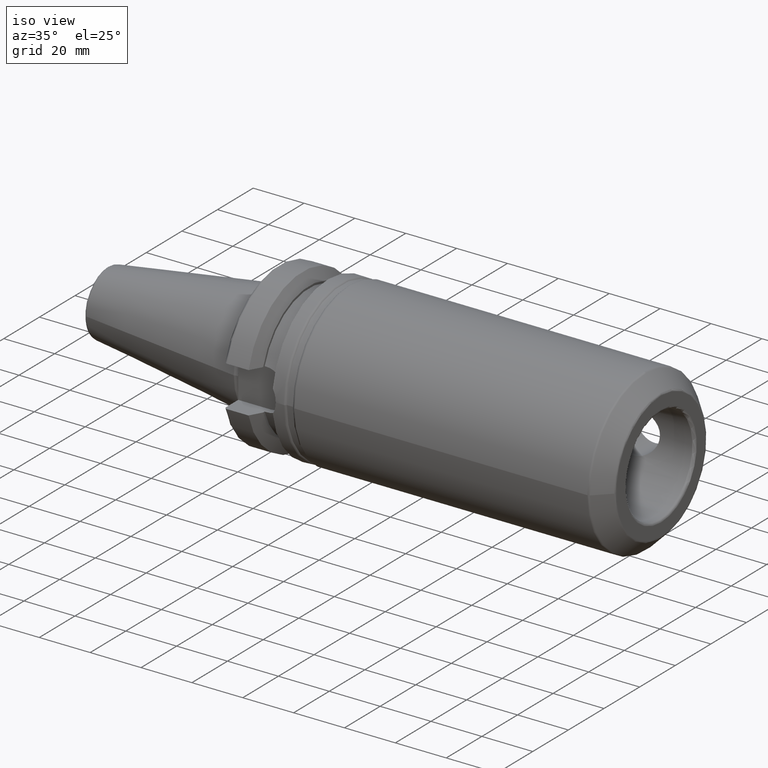
[diagram: clean part render]
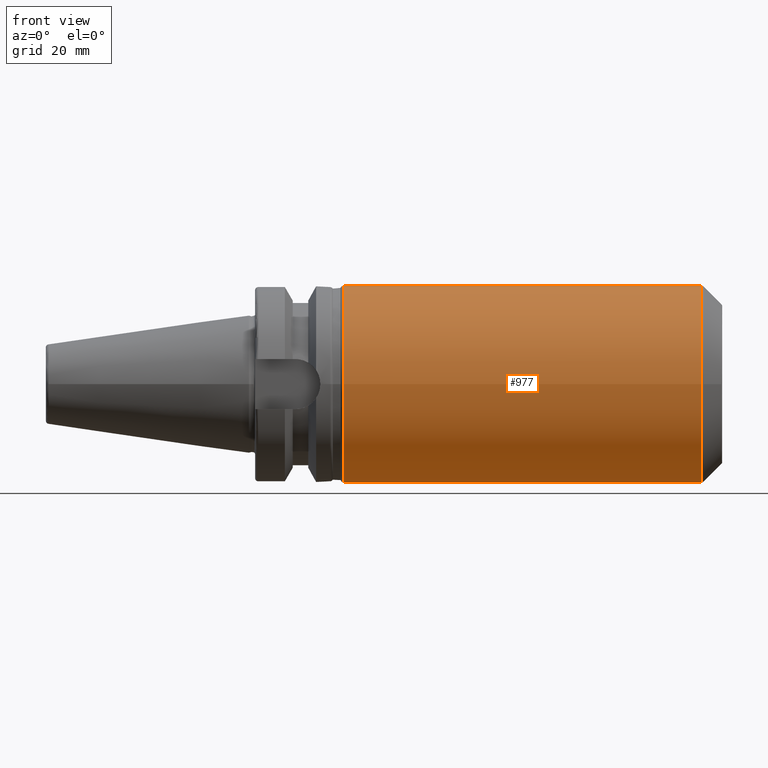
[diagram: tour spotlight — one face highlighted and labeled with its STEP entity id]
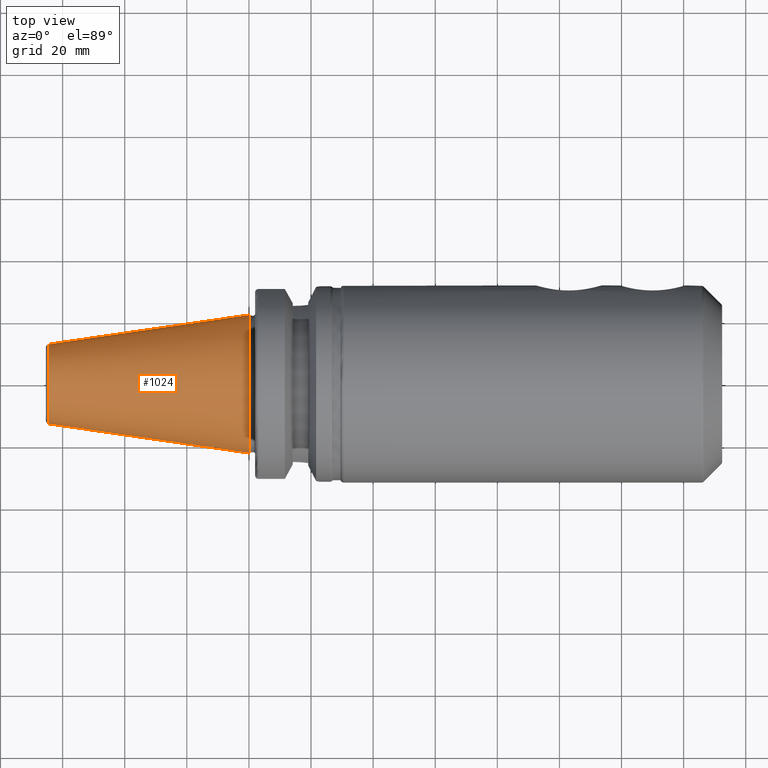
[diagram: tour spotlight — one face highlighted and labeled with its STEP entity id]
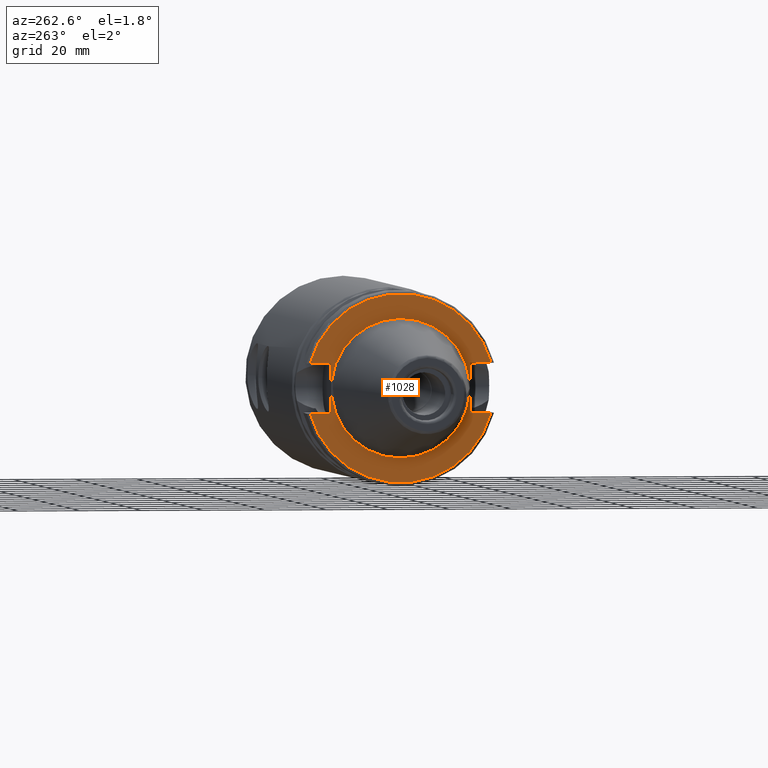
[diagram: tour spotlight — one face highlighted and labeled with its STEP entity id]
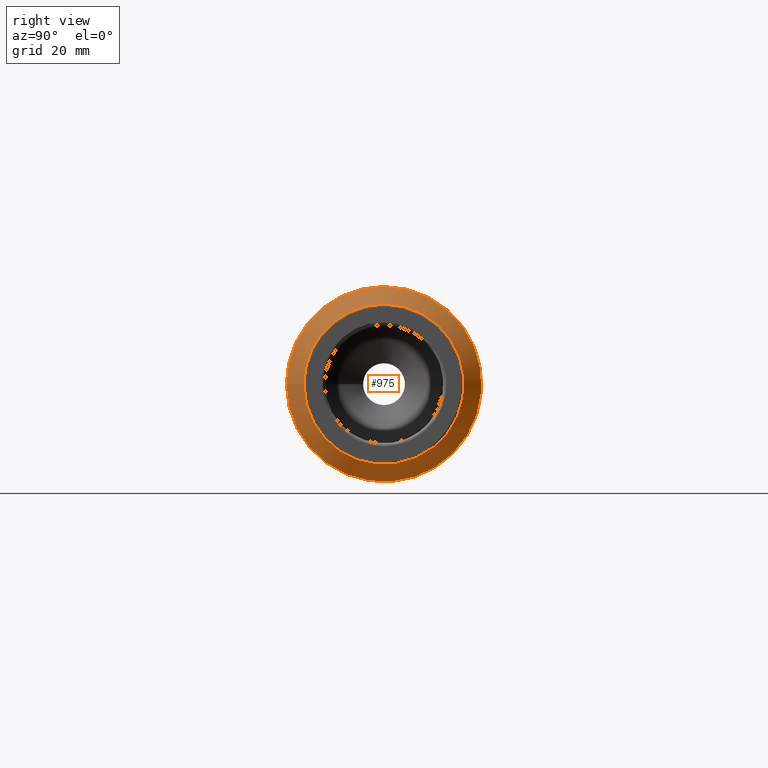
[diagram: tour spotlight — one face highlighted and labeled with its STEP entity id]
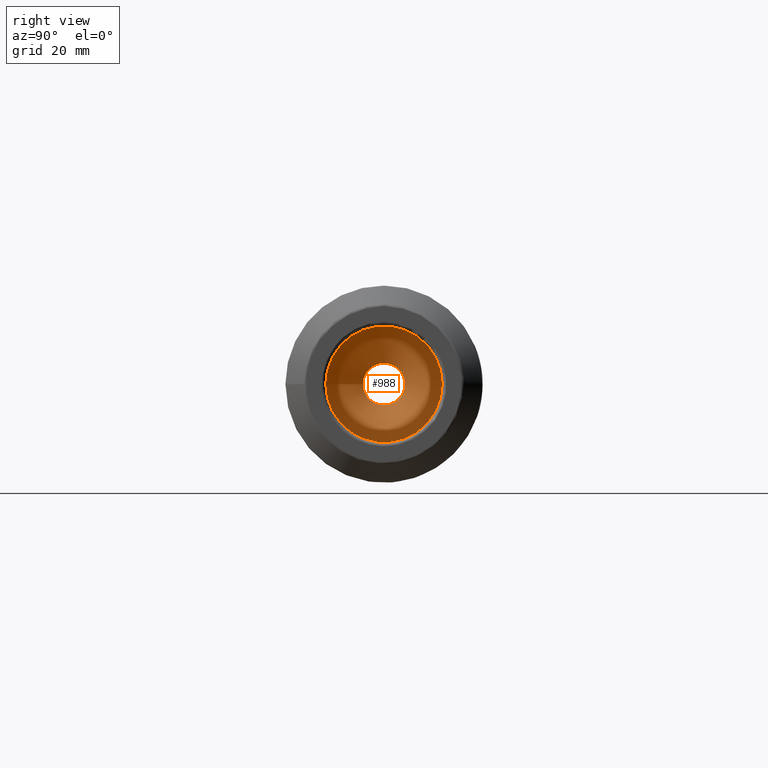
[diagram: tour spotlight — one face highlighted and labeled with its STEP entity id]
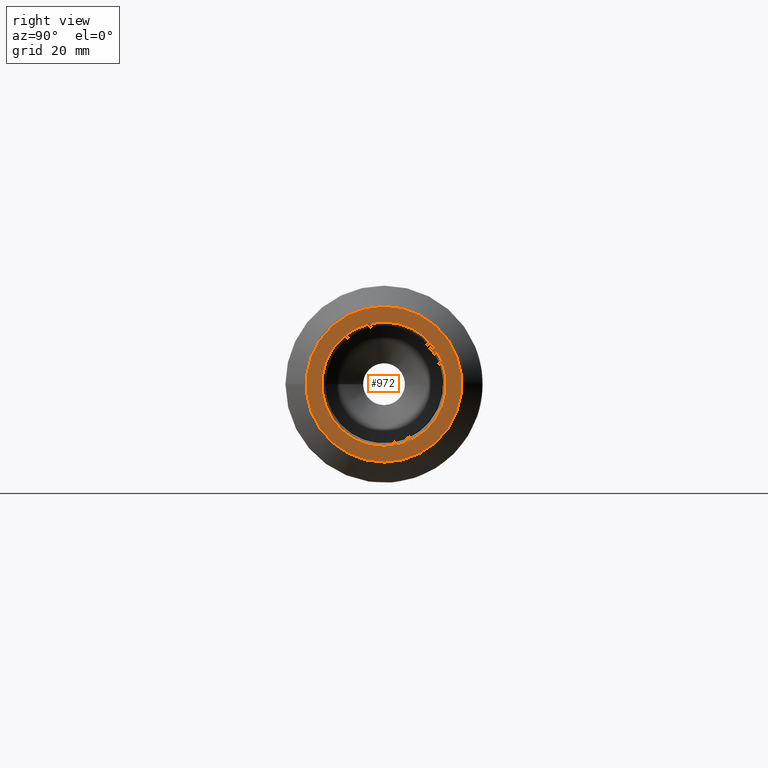
[diagram: tour spotlight — one face highlighted and labeled with its STEP entity id]
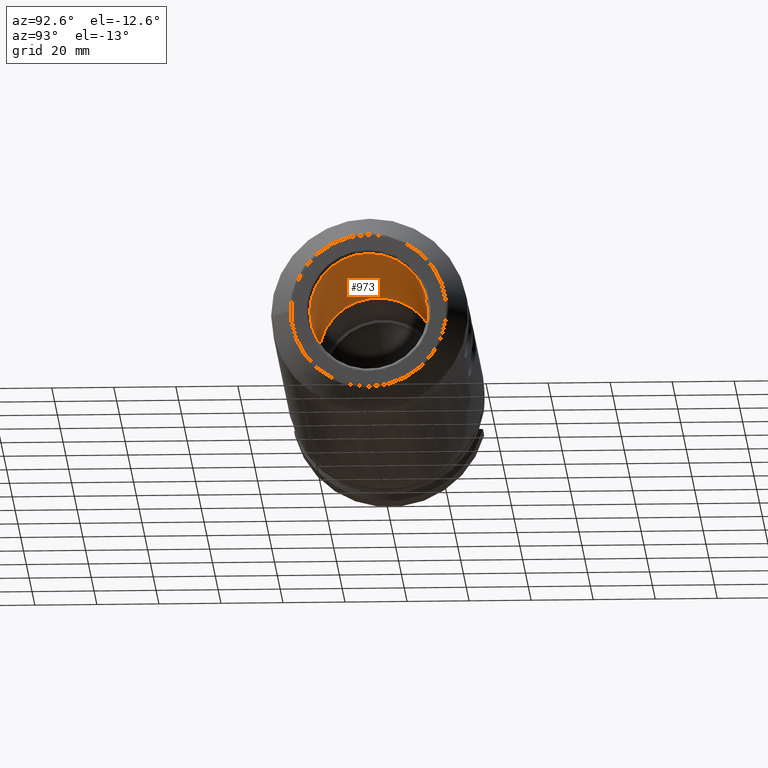
[diagram: tour spotlight — one face highlighted and labeled with its STEP entity id]
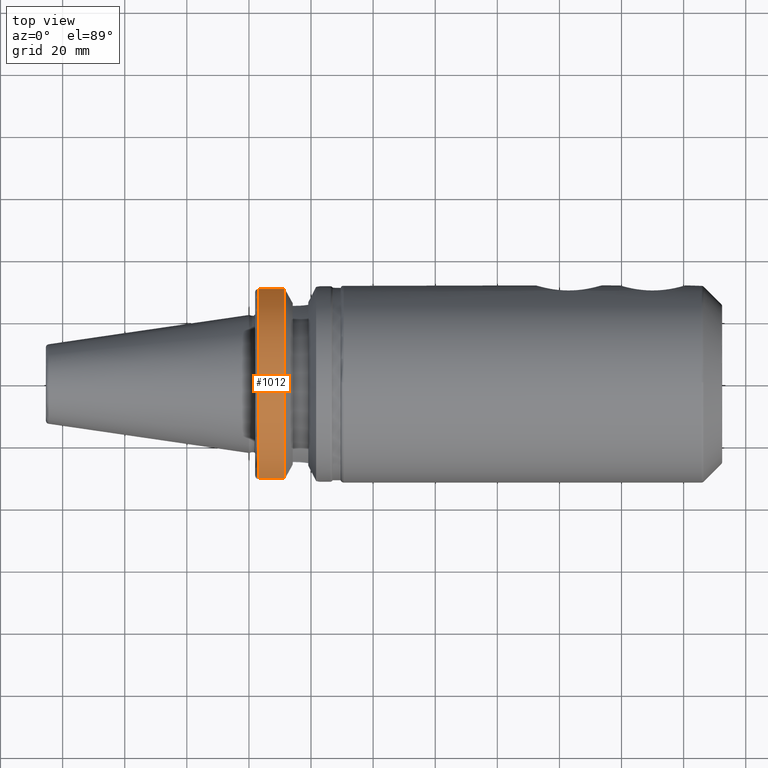
[diagram: tour spotlight — one face highlighted and labeled with its STEP entity id]
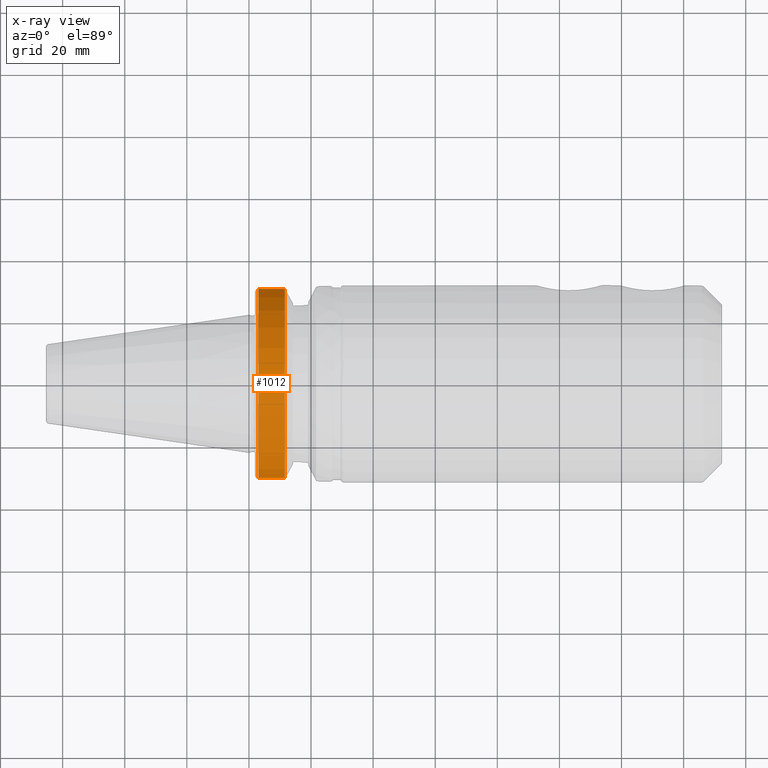
[diagram: x-ray of the same camera — body ghosted, this tour face saturated]
A machine part: a face-by-face anatomy tour. The part has 58 B-rep faces; the first image is the clean iso view, then the 8 largest visible faces are spotlighted one at a time (largest first), each with its STEP entity span.

Face 1 — front view, entity #977. In plain terms, the highlighted cylindrical surface (bore or boss wall) has radius 31.75 mm, axis along (1, 0, 0).
Definition (entity closure, byte-faithful):
#43=B_SPLINE_CURVE_WITH_KNOTS('',3,(#1672,#1673,#1674,#1675,#1676,#1677,
#1678,#1679,#1680,#1681,#1682,#1683,#1684,#1685,#1686,#1687,#1688,#1689,
#1690,#1691,#1692,#1693,#1694,#1695,#1696,#1697,#1698,#1699,#1700,#1701,
#1702,#1703,#1704,#1705,#1706,#1707,#1708),.UNSPECIFIED.,.T.,.F.,(4,1,1,
1,1,1,1,1,1,1,1,1,1,1,1,1,1,1,1,1,1,1,1,1,1,1,1,1,1,1,1,1,1,1,4),(-9.18578536524083,
-8.99832035778693,-8.81085535033304,-8.67025659474262,-8.62339034287914,
-8.43592533542525,-8.24846032797135,-8.10786157238093,-8.06099532051746,
-7.68606530560967,-7.56108863397374,-7.4673561302468,-7.43611196233781,
-7.31113529070188,-7.18615861906595,-6.99869361161206,-6.93620527579409,
-6.68625193252223,-6.43629858925038,-6.18634524597852,-6.0457464903881,
-5.99888023852462,-5.81141523107073,-5.62395022361683,-5.55365084582162,
-5.53021771988989,-5.43648521616294,-5.06155520125515,-5.01468894939168,
-4.87409019380125,-4.68662518634736,-4.49916017889347,-4.31169517143957,
-4.12423016398568,-3.93676515653178),.UNSPECIFIED.);
#44=B_SPLINE_CURVE_WITH_KNOTS('',3,(#1710,#1711,#1712,#1713,#1714,#1715,
#1716,#1717,#1718,#1719,#1720,#1721,#1722,#1723,#1724,#1725,#1726,#1727,
#1728,#1729,#1730,#1731,#1732,#1733,#1734,#1735,#1736,#1737,#1738,#1739,
#1740,#1741,#1742,#1743,#1744,#1745,#1746),.UNSPECIFIED.,.T.,.F.,(4,1,1,
1,1,1,1,1,1,1,1,1,1,1,1,1,1,1,1,1,1,1,1,1,1,1,1,1,1,1,1,1,1,1,4),(-9.18578536524083,
-8.99832035778693,-8.81085535033304,-8.67025659474262,-8.62339034287914,
-8.43592533542525,-8.24846032797135,-8.10786157238093,-8.06099532051746,
-7.68606530560967,-7.56108863397374,-7.4673561302468,-7.43611196233781,
-7.31113529070188,-7.18615861906595,-6.99869361161206,-6.93620527579409,
-6.68625193252223,-6.43629858925038,-6.18634524597852,-6.0457464903881,
-5.99888023852462,-5.81141523107073,-5.62395022361683,-5.55365084582162,
-5.53021771988989,-5.43648521616294,-5.06155520125515,-5.01468894939168,
-4.87409019380125,-4.68662518634736,-4.49916017889347,-4.31169517143957,
-4.12423016398568,-3.93676515653178),.UNSPECIFIED.);
#66=LINE('',#1667,#120);
#120=VECTOR('',#1221,31.75);
#171=CYLINDRICAL_SURFACE('',#1072,31.75);
#191=FACE_BOUND('',#282,.T.);
#192=FACE_BOUND('',#283,.T.);
#220=FACE_OUTER_BOUND('',#281,.T.);
#281=EDGE_LOOP('',(#700,#701,#702,#703,#704,#705));
#282=EDGE_LOOP('',(#706));
#283=EDGE_LOOP('',(#707));
#352=CIRCLE('',#1070,31.75);
#353=CIRCLE('',#1071,31.75);
#354=CIRCLE('',#1073,31.75);
#355=CIRCLE('',#1074,31.75);
#424=VERTEX_POINT('',#1660);
#425=VERTEX_POINT('',#1662);
#426=VERTEX_POINT('',#1666);
#427=VERTEX_POINT('',#1668);
#428=VERTEX_POINT('',#1671);
#429=VERTEX_POINT('',#1709);
#531=EDGE_CURVE('',#424,#425,#352,.T.);
#532=EDGE_CURVE('',#425,#424,#353,.T.);
#533=EDGE_CURVE('',#425,#426,#66,.T.);
#534=EDGE_CURVE('',#426,#427,#354,.T.);
#535=EDGE_CURVE('',#427,#426,#355,.T.);
#536=EDGE_CURVE('',#428,#428,#43,.T.);
#537=EDGE_CURVE('',#429,#429,#44,.T.);
#700=ORIENTED_EDGE('',*,*,#532,.F.);
#701=ORIENTED_EDGE('',*,*,#533,.T.);
#702=ORIENTED_EDGE('',*,*,#534,.T.);
#703=ORIENTED_EDGE('',*,*,#535,.T.);
#704=ORIENTED_EDGE('',*,*,#533,.F.);
#705=ORIENTED_EDGE('',*,*,#531,.F.);
#706=ORIENTED_EDGE('',*,*,#536,.F.);
#707=ORIENTED_EDGE('',*,*,#537,.F.);
#977=ADVANCED_FACE('',(#220,#191,#192),#171,.T.);
#1070=AXIS2_PLACEMENT_3D('',#1663,#1215,#1216);
#1071=AXIS2_PLACEMENT_3D('',#1664,#1217,#1218);
#1072=AXIS2_PLACEMENT_3D('',#1665,#1219,#1220);
#1073=AXIS2_PLACEMENT_3D('',#1669,#1222,#1223);
#1074=AXIS2_PLACEMENT_3D('',#1670,#1224,#1225);
#1215=DIRECTION('center_axis',(1.,0.,0.));
#1216=DIRECTION('ref_axis',(0.,-1.,1.83697019872103E-16));
#1217=DIRECTION('center_axis',(1.,0.,0.));
#1218=DIRECTION('ref_axis',(0.,-1.,1.83697019872103E-16));
#1219=DIRECTION('center_axis',(1.,0.,0.));
#1220=DIRECTION('ref_axis',(0.,1.,0.));
#1221=DIRECTION('',(-1.,0.,0.));
#1222=DIRECTION('center_axis',(1.,0.,0.));
#1223=DIRECTION('ref_axis',(0.,0.,-1.));
#1224=DIRECTION('center_axis',(1.,0.,0.));
#1225=DIRECTION('ref_axis',(0.,0.,-1.));
#1660=CARTESIAN_POINT('',(145.735786437627,-3.88825358729285E-15,31.75));
#1662=CARTESIAN_POINT('',(145.735786437627,-31.75,-3.88825358729285E-15));
#1663=CARTESIAN_POINT('Origin',(145.735786437627,0.,0.));
#1664=CARTESIAN_POINT('Origin',(145.735786437627,0.,0.));
#1665=CARTESIAN_POINT('Origin',(88.3251229182759,0.,0.));
#1666=CARTESIAN_POINT('',(30.5002458365519,-31.75,-3.88825358729285E-15));
#1667=CARTESIAN_POINT('',(88.3251229182759,-31.75,-3.88825358729285E-15));
#1668=CARTESIAN_POINT('',(30.5002458365519,-3.88825358729285E-15,31.75));
#1669=CARTESIAN_POINT('Origin',(30.5002458365519,0.,0.));
#1670=CARTESIAN_POINT('Origin',(30.5002458365519,0.,0.));
#1671=CARTESIAN_POINT('',(140.6614,31.75,-1.38777878078145E-15));
#1672=CARTESIAN_POINT('Ctrl Pts',(140.6614,31.75,-1.38777878078145E-15));
#1673=CARTESIAN_POINT('Ctrl Pts',(140.6614,31.75,-0.769174894924205));
#1674=CARTESIAN_POINT('Ctrl Pts',(140.491356010389,31.6921127395513,-2.36559429838009));
#1675=CARTESIAN_POINT('Ctrl Pts',(139.746184910162,31.4510532852662,-4.48750746064443));
#1676=CARTESIAN_POINT('Ctrl Pts',(138.921537421419,31.2088649133986,-5.86608778069849));
#1677=CARTESIAN_POINT('Ctrl Pts',(137.965358755017,30.9508768308121,-7.11424172821393));
#1678=CARTESIAN_POINT('Ctrl Pts',(136.767837592823,30.6569593685258,-8.30379267024276));
#1679=CARTESIAN_POINT('Ctrl Pts',(134.87960104052,30.3022455747316,-9.49436323433042));
#1680=CARTESIAN_POINT('Ctrl Pts',(133.354818508813,30.1130225104704,-10.0657507316721));
#1681=CARTESIAN_POINT('Ctrl Pts',(130.981166370635,29.909552660313,-10.6586351773608));
#1682=CARTESIAN_POINT('Ctrl Pts',(128.684957431957,29.9100421972096,-10.6574262551758));
#1683=CARTESIAN_POINT('Ctrl Pts',(126.190443303079,30.1636114894983,-9.91664526043093));
#1684=CARTESIAN_POINT('Ctrl Pts',(125.207942278336,30.3062427961878,-9.46799606248876));
#1685=CARTESIAN_POINT('Ctrl Pts',(124.267541439535,30.4628340074507,-8.95476334148104));
#1686=CARTESIAN_POINT('Ctrl Pts',(123.273075090035,30.6580111516531,-8.27429792382916));
#1687=CARTESIAN_POINT('Ctrl Pts',(121.976417682608,30.9611758290659,-7.08356591555251));
#1688=CARTESIAN_POINT('Ctrl Pts',(121.025650251439,31.223121454804,-5.82032802332885));
#1689=CARTESIAN_POINT('Ctrl Pts',(120.009964402872,31.5268634444042,-3.93129970098243));
#1690=CARTESIAN_POINT('Ctrl Pts',(119.296917140045,31.7637161189347,-1.55356781799805));
#1691=CARTESIAN_POINT('Ctrl Pts',(119.296286088456,31.7639583956281,1.55466449930466));
#1692=CARTESIAN_POINT('Ctrl Pts',(120.110844661535,31.4934884784565,4.26247835863216));
#1693=CARTESIAN_POINT('Ctrl Pts',(121.078022685288,31.208910404557,5.86472593901334));
#1694=CARTESIAN_POINT('Ctrl Pts',(122.033181122689,30.9514032617553,7.11374520003694));
#1695=CARTESIAN_POINT('Ctrl Pts',(123.234475601637,30.6564947425395,8.30422691115962));
#1696=CARTESIAN_POINT('Ctrl Pts',(124.861975404643,30.3505985478894,9.33365294412961));
#1697=CARTESIAN_POINT('Ctrl Pts',(125.982767742892,30.1976715284683,9.80696096249077));
#1698=CARTESIAN_POINT('Ctrl Pts',(126.746386485527,30.1071090638416,10.0826412860967));
#1699=CARTESIAN_POINT('Ctrl Pts',(128.819317780334,29.9098615294564,10.658374504793));
#1700=CARTESIAN_POINT('Ctrl Pts',(130.982510920182,29.9097052865847,10.6588510541332));
#1701=CARTESIAN_POINT('Ctrl Pts',(133.353674110932,30.1128573186918,10.0655773027828));
#1702=CARTESIAN_POINT('Ctrl Pts',(134.880698177704,30.3024429901464,9.49407055637104));
#1703=CARTESIAN_POINT('Ctrl Pts',(136.76436673445,30.6563113234884,8.30546947000284));
#1704=CARTESIAN_POINT('Ctrl Pts',(138.370908607756,31.0501124390865,6.7142350334798));
#1705=CARTESIAN_POINT('Ctrl Pts',(139.684067209108,31.4300347053663,4.67890405651803));
#1706=CARTESIAN_POINT('Ctrl Pts',(140.487933534083,31.6916284843512,2.36602209566385));
#1707=CARTESIAN_POINT('Ctrl Pts',(140.6614,31.75,0.769174894924175));
#1708=CARTESIAN_POINT('Ctrl Pts',(140.6614,31.75,-1.38777878078145E-15));
#1709=CARTESIAN_POINT('',(113.6614,31.75,-2.77555756156289E-16));
#1710=CARTESIAN_POINT('Ctrl Pts',(113.6614,31.75,-2.77555756156289E-16));
#1711=CARTESIAN_POINT('Ctrl Pts',(113.6614,31.75,-0.769174894924178));
#1712=CARTESIAN_POINT('Ctrl Pts',(113.491410642947,31.6921247820804,-2.36555154979832));
#1713=CARTESIAN_POINT('Ctrl Pts',(112.746286765812,31.451071764053,-4.48742330225482));
#1714=CARTESIAN_POINT('Ctrl Pts',(111.921644434353,31.2088817456167,-5.86600880506709));
#1715=CARTESIAN_POINT('Ctrl Pts',(110.965461516255,30.9508931481206,-7.11415728910441));
#1716=CARTESIAN_POINT('Ctrl Pts',(109.767878211516,30.6569429103293,-8.30385854145552));
#1717=CARTESIAN_POINT('Ctrl Pts',(107.879679071218,30.302233133255,-9.49438864352834));
#1718=CARTESIAN_POINT('Ctrl Pts',(106.354905973401,30.1130110329532,-10.0657620518526));
#1719=CARTESIAN_POINT('Ctrl Pts',(103.981225992303,29.9095390727825,-10.6585947307474));
#1720=CARTESIAN_POINT('Ctrl Pts',(101.684899342794,29.9100317436773,-10.6574185633039));
#1721=CARTESIAN_POINT('Ctrl Pts',(99.1903338395166,30.163603319482,-9.91667228361118));
#1722=CARTESIAN_POINT('Ctrl Pts',(98.2078622168015,30.3062333305924,-9.46801040836542));
#1723=CARTESIAN_POINT('Ctrl Pts',(97.2674617298206,30.4628239726311,-8.95478417141456));
#1724=CARTESIAN_POINT('Ctrl Pts',(96.2730319706834,30.6579995119318,-8.27429067922508));
#1725=CARTESIAN_POINT('Ctrl Pts',(94.976373047944,30.9611677678746,-7.08355918579648));
#1726=CARTESIAN_POINT('Ctrl Pts',(94.0256285488738,31.2231131988787,-5.82027881889471));
#1727=CARTESIAN_POINT('Ctrl Pts',(93.009907057682,31.5268707701487,-3.93128616280668));
#1728=CARTESIAN_POINT('Ctrl Pts',(92.296914824399,31.7637080858201,-1.55345707051174));
#1729=CARTESIAN_POINT('Ctrl Pts',(92.2961858436486,31.7639817116526,1.55470604688979));
#1730=CARTESIAN_POINT('Ctrl Pts',(93.1109186160933,31.4934328075963,4.26297810418839));
#1731=CARTESIAN_POINT('Ctrl Pts',(94.0781071134452,31.2088560395292,5.86502833093494));
#1732=CARTESIAN_POINT('Ctrl Pts',(95.033570373085,30.9512051128295,7.11516966706842));
#1733=CARTESIAN_POINT('Ctrl Pts',(96.2340631756905,30.6566831283452,8.30265566591655));
#1734=CARTESIAN_POINT('Ctrl Pts',(97.8617774975658,30.3506359455646,9.33332136479747));
#1735=CARTESIAN_POINT('Ctrl Pts',(98.9825656553281,30.1977085905338,9.80662951942808));
#1736=CARTESIAN_POINT('Ctrl Pts',(99.7461871664349,30.1071419055258,10.0823488301348));
#1737=CARTESIAN_POINT('Ctrl Pts',(101.819167986091,29.9098833478036,10.6581102790336));
#1738=CARTESIAN_POINT('Ctrl Pts',(103.982605505416,29.9097035585288,10.6587837276352));
#1739=CARTESIAN_POINT('Ctrl Pts',(106.353812198437,30.1128577006346,10.0655647938164));
#1740=CARTESIAN_POINT('Ctrl Pts',(107.880830970826,30.3024411344006,9.4940701038552));
#1741=CARTESIAN_POINT('Ctrl Pts',(109.764449892696,30.6563069088101,8.30549105591682));
#1742=CARTESIAN_POINT('Ctrl Pts',(111.37100018554,31.0501191219303,6.71420738063719));
#1743=CARTESIAN_POINT('Ctrl Pts',(112.68415058054,31.4300419307499,4.67888624125295));
#1744=CARTESIAN_POINT('Ctrl Pts',(113.487995413421,31.6916386265662,2.36599965973631));
#1745=CARTESIAN_POINT('Ctrl Pts',(113.6614,31.75,0.769174894924127));
#1746=CARTESIAN_POINT('Ctrl Pts',(113.6614,31.75,-2.77555756156289E-15));

Face 2 — top view, entity #1024. In plain terms, the highlighted conical surface has half-angle 8.297 deg.
Definition (entity closure, byte-faithful):
#31=CONICAL_SURFACE('',#1162,17.5186442890469,0.144812498238939);
#113=LINE('',#2445,#167);
#167=VECTOR('',#1450,17.5186442890469);
#267=FACE_OUTER_BOUND('',#334,.T.);
#334=EDGE_LOOP('',(#933,#934,#935,#936,#937));
#396=CIRCLE('',#1159,12.8122885780937);
#397=CIRCLE('',#1160,12.8122885780937);
#399=CIRCLE('',#1163,22.225);
#498=VERTEX_POINT('',#2437);
#499=VERTEX_POINT('',#2438);
#500=VERTEX_POINT('',#2443);
#645=EDGE_CURVE('',#498,#499,#396,.T.);
#646=EDGE_CURVE('',#499,#498,#397,.T.);
#648=EDGE_CURVE('',#500,#500,#399,.T.);
#649=EDGE_CURVE('',#500,#498,#113,.T.);
#933=ORIENTED_EDGE('',*,*,#648,.F.);
#934=ORIENTED_EDGE('',*,*,#649,.T.);
#935=ORIENTED_EDGE('',*,*,#645,.T.);
#936=ORIENTED_EDGE('',*,*,#646,.T.);
#937=ORIENTED_EDGE('',*,*,#649,.F.);
#1024=ADVANCED_FACE('',(#267),#31,.T.);
#1159=AXIS2_PLACEMENT_3D('',#2439,#1440,#1441);
#1160=AXIS2_PLACEMENT_3D('',#2440,#1442,#1443);
#1162=AXIS2_PLACEMENT_3D('',#2442,#1446,#1447);
#1163=AXIS2_PLACEMENT_3D('',#2444,#1448,#1449);
#1440=DIRECTION('center_axis',(1.,0.,0.));
#1441=DIRECTION('ref_axis',(0.,0.,-1.));
#1442=DIRECTION('center_axis',(1.,0.,0.));
#1443=DIRECTION('ref_axis',(0.,0.,-1.));
#1446=DIRECTION('center_axis',(1.,0.,0.));
#1447=DIRECTION('ref_axis',(0.,1.,0.));
#1448=DIRECTION('center_axis',(1.,0.,0.));
#1449=DIRECTION('ref_axis',(0.,0.,-1.));
#1450=DIRECTION('',(-0.989532981063282,0.144306893071729,1.76724974695192E-17));
#2437=CARTESIAN_POINT('',(-64.5443068930717,-12.8122885780937,-1.56905281969147E-15));
#2438=CARTESIAN_POINT('',(-64.5443068930717,-1.56905281969147E-15,12.8122885780937));
#2439=CARTESIAN_POINT('Origin',(-64.5443068930717,0.,0.));
#2440=CARTESIAN_POINT('Origin',(-64.5443068930717,0.,0.));
#2442=CARTESIAN_POINT('Origin',(-32.2721534465359,0.,0.));
#2443=CARTESIAN_POINT('',(4.44089209850063E-15,-22.225,-2.72177751110499E-15));
#2444=CARTESIAN_POINT('Origin',(1.11022302462516E-15,0.,0.));
#2445=CARTESIAN_POINT('',(-32.2721534465359,-17.5186442890469,-2.14541516539823E-15));

Face 3 — auxiliary view, entity #1028. In plain terms, the highlighted planar face has unit normal (-1, 0, 0).
Definition (entity closure, byte-faithful):
#87=LINE('',#2265,#141);
#91=LINE('',#2273,#145);
#94=LINE('',#2293,#148);
#104=LINE('',#2373,#158);
#107=LINE('',#2394,#161);
#109=LINE('',#2397,#163);
#141=VECTOR('',#1314,10.);
#145=VECTOR('',#1320,10.);
#148=VECTOR('',#1325,10.);
#158=VECTOR('',#1369,10.);
#161=VECTOR('',#1374,10.);
#163=VECTOR('',#1378,10.);
#197=FACE_BOUND('',#339,.T.);
#213=PLANE('',#1172);
#271=FACE_OUTER_BOUND('',#338,.T.);
#338=EDGE_LOOP('',(#952,#953,#954,#955,#956,#957,#958,#959));
#339=EDGE_LOOP('',(#960));
#379=CIRCLE('',#1124,30.5);
#383=CIRCLE('',#1134,30.5);
#404=CIRCLE('',#1171,22.5);
#463=VERTEX_POINT('',#2253);
#464=VERTEX_POINT('',#2264);
#466=VERTEX_POINT('',#2270);
#467=VERTEX_POINT('',#2272);
#478=VERTEX_POINT('',#2333);
#485=VERTEX_POINT('',#2370);
#486=VERTEX_POINT('',#2372);
#490=VERTEX_POINT('',#2393);
#504=VERTEX_POINT('',#2457);
#586=EDGE_CURVE('',#464,#463,#87,.T.);
#590=EDGE_CURVE('',#467,#466,#91,.T.);
#595=EDGE_CURVE('',#466,#464,#94,.T.);
#609=EDGE_CURVE('',#467,#478,#379,.T.);
#619=EDGE_CURVE('',#486,#485,#104,.T.);
#624=EDGE_CURVE('',#490,#478,#107,.T.);
#626=EDGE_CURVE('',#485,#490,#109,.T.);
#629=EDGE_CURVE('',#486,#463,#383,.T.);
#656=EDGE_CURVE('',#504,#504,#404,.T.);
#952=ORIENTED_EDGE('',*,*,#586,.T.);
#953=ORIENTED_EDGE('',*,*,#629,.F.);
#954=ORIENTED_EDGE('',*,*,#619,.T.);
#955=ORIENTED_EDGE('',*,*,#626,.T.);
#956=ORIENTED_EDGE('',*,*,#624,.T.);
#957=ORIENTED_EDGE('',*,*,#609,.F.);
#958=ORIENTED_EDGE('',*,*,#590,.T.);
#959=ORIENTED_EDGE('',*,*,#595,.T.);
#960=ORIENTED_EDGE('',*,*,#656,.T.);
#1028=ADVANCED_FACE('',(#271,#197),#213,.T.);
#1124=AXIS2_PLACEMENT_3D('',#2334,#1356,#1357);
#1134=AXIS2_PLACEMENT_3D('',#2402,#1387,#1388);
#1171=AXIS2_PLACEMENT_3D('',#2459,#1467,#1468);
#1172=AXIS2_PLACEMENT_3D('',#2460,#1469,#1470);
#1314=DIRECTION('',(0.,-1.,0.));
#1320=DIRECTION('',(0.,1.,0.));
#1325=DIRECTION('',(0.,0.,1.));
#1356=DIRECTION('center_axis',(1.,0.,0.));
#1357=DIRECTION('ref_axis',(0.,0.,-1.));
#1369=DIRECTION('',(0.,-1.,0.));
#1374=DIRECTION('',(0.,1.,0.));
#1378=DIRECTION('',(0.,0.,-1.));
#1387=DIRECTION('center_axis',(1.,0.,0.));
#1388=DIRECTION('ref_axis',(0.,0.,-1.));
#1467=DIRECTION('center_axis',(1.,0.,0.));
#1468=DIRECTION('ref_axis',(0.,0.,-1.));
#1469=DIRECTION('center_axis',(-1.,0.,0.));
#1470=DIRECTION('ref_axis',(0.,0.,1.));
#2253=CARTESIAN_POINT('',(1.99999999999999,-29.4184890842477,8.05));
#2264=CARTESIAN_POINT('',(1.99999999999999,-22.6,8.05));
#2265=CARTESIAN_POINT('',(1.99999999999999,3.95,8.05));
#2270=CARTESIAN_POINT('',(1.99999999999999,-22.6,-8.05));
#2272=CARTESIAN_POINT('',(1.99999999999999,-29.4184890842477,-8.05));
#2273=CARTESIAN_POINT('',(1.99999999999999,3.95,-8.05));
#2293=CARTESIAN_POINT('',(1.99999999999999,-22.6,0.));
#2333=CARTESIAN_POINT('',(1.99999999999999,29.4184890842477,-8.05));
#2334=CARTESIAN_POINT('Origin',(1.99999999999999,0.,0.));
#2370=CARTESIAN_POINT('',(1.99999999999999,22.6,8.05));
#2372=CARTESIAN_POINT('',(1.99999999999999,29.4184890842477,8.05));
#2373=CARTESIAN_POINT('',(1.99999999999999,26.55,8.05));
#2393=CARTESIAN_POINT('',(1.99999999999999,22.6,-8.05));
#2394=CARTESIAN_POINT('',(1.99999999999999,26.55,-8.05));
#2397=CARTESIAN_POINT('',(1.99999999999999,22.6,0.));
#2402=CARTESIAN_POINT('Origin',(1.99999999999999,0.,0.));
#2457=CARTESIAN_POINT('',(2.,-2.75545529808154E-15,22.5));
#2459=CARTESIAN_POINT('Origin',(2.,0.,0.));
#2460=CARTESIAN_POINT('Origin',(1.99999999999999,30.5,0.));

Face 4 — right view, entity #975. In plain terms, the highlighted conical surface has half-angle 45 deg.
Definition (entity closure, byte-faithful):
#21=CONICAL_SURFACE('',#1065,28.625,0.78539816339745);
#65=LINE('',#1655,#119);
#119=VECTOR('',#1206,28.625);
#218=FACE_OUTER_BOUND('',#279,.T.);
#279=EDGE_LOOP('',(#688,#689,#690,#691,#692,#693));
#347=CIRCLE('',#1063,25.7928932188135);
#348=CIRCLE('',#1064,25.7928932188135);
#349=CIRCLE('',#1066,31.4571067811866);
#350=CIRCLE('',#1067,31.4571067811866);
#420=VERTEX_POINT('',#1648);
#421=VERTEX_POINT('',#1650);
#422=VERTEX_POINT('',#1654);
#423=VERTEX_POINT('',#1656);
#525=EDGE_CURVE('',#420,#421,#347,.T.);
#526=EDGE_CURVE('',#421,#420,#348,.T.);
#527=EDGE_CURVE('',#421,#422,#65,.T.);
#528=EDGE_CURVE('',#423,#422,#349,.T.);
#529=EDGE_CURVE('',#422,#423,#350,.T.);
#688=ORIENTED_EDGE('',*,*,#526,.F.);
#689=ORIENTED_EDGE('',*,*,#527,.T.);
#690=ORIENTED_EDGE('',*,*,#528,.F.);
#691=ORIENTED_EDGE('',*,*,#529,.F.);
#692=ORIENTED_EDGE('',*,*,#527,.F.);
#693=ORIENTED_EDGE('',*,*,#525,.F.);
#975=ADVANCED_FACE('',(#218),#21,.T.);
#1063=AXIS2_PLACEMENT_3D('',#1651,#1200,#1201);
#1064=AXIS2_PLACEMENT_3D('',#1652,#1202,#1203);
#1065=AXIS2_PLACEMENT_3D('',#1653,#1204,#1205);
#1066=AXIS2_PLACEMENT_3D('',#1657,#1207,#1208);
#1067=AXIS2_PLACEMENT_3D('',#1658,#1209,#1210);
#1200=DIRECTION('center_axis',(1.,0.,0.));
#1201=DIRECTION('ref_axis',(0.,-1.,3.06161699786838E-17));
#1202=DIRECTION('center_axis',(1.,0.,0.));
#1203=DIRECTION('ref_axis',(0.,-1.,3.06161699786838E-17));
#1204=DIRECTION('center_axis',(-1.,0.,0.));
#1205=DIRECTION('ref_axis',(0.,1.,0.));
#1206=DIRECTION('',(-0.707106781186546,-0.707106781186549,-8.65956056235494E-17));
#1207=DIRECTION('center_axis',(-1.,0.,0.));
#1208=DIRECTION('ref_axis',(0.,-1.,3.06161699786838E-17));
#1209=DIRECTION('center_axis',(-1.,0.,0.));
#1210=DIRECTION('ref_axis',(0.,-1.,3.06161699786838E-17));
#1648=CARTESIAN_POINT('',(152.107106781187,-3.15871841211694E-15,25.7928932188135));
#1650=CARTESIAN_POINT('',(152.107106781187,-25.7928932188135,-3.15871841211694E-15));
#1651=CARTESIAN_POINT('Origin',(152.107106781187,0.,-3.94839801514618E-15));
#1652=CARTESIAN_POINT('Origin',(152.107106781187,0.,-3.94839801514618E-15));
#1653=CARTESIAN_POINT('Origin',(149.275,0.,0.));
#1654=CARTESIAN_POINT('',(146.442893218813,-31.4571067811866,-3.85238451300166E-15));
#1655=CARTESIAN_POINT('',(149.275,-28.625,-3.5055514625593E-15));
#1656=CARTESIAN_POINT('',(146.442893218813,-3.85238451300166E-15,31.4571067811866));
#1657=CARTESIAN_POINT('Origin',(146.442893218813,0.,-4.81548064125208E-15));
#1658=CARTESIAN_POINT('Origin',(146.442893218813,0.,-4.81548064125208E-15));

Face 5 — right view, entity #988. In plain terms, the highlighted conical surface has half-angle 60 deg.
Definition (entity closure, byte-faithful):
#24=CONICAL_SURFACE('',#1091,12.7515560482262,1.0471975511966);
#75=LINE('',#2179,#129);
#129=VECTOR('',#1268,12.7515560482262);
#231=FACE_OUTER_BOUND('',#295,.T.);
#295=EDGE_LOOP('',(#754,#755,#756,#757,#758));
#363=CIRCLE('',#1090,18.7531120964523);
#364=CIRCLE('',#1092,6.75000000000002);
#365=CIRCLE('',#1093,6.75000000000002);
#443=VERTEX_POINT('',#2175);
#444=VERTEX_POINT('',#2178);
#445=VERTEX_POINT('',#2180);
#558=EDGE_CURVE('',#443,#443,#363,.T.);
#559=EDGE_CURVE('',#443,#444,#75,.T.);
#560=EDGE_CURVE('',#445,#444,#364,.T.);
#561=EDGE_CURVE('',#444,#445,#365,.T.);
#754=ORIENTED_EDGE('',*,*,#558,.T.);
#755=ORIENTED_EDGE('',*,*,#559,.T.);
#756=ORIENTED_EDGE('',*,*,#560,.F.);
#757=ORIENTED_EDGE('',*,*,#561,.F.);
#758=ORIENTED_EDGE('',*,*,#559,.F.);
#988=ADVANCED_FACE('',(#231),#24,.F.);
#1090=AXIS2_PLACEMENT_3D('',#2176,#1264,#1265);
#1091=AXIS2_PLACEMENT_3D('',#2177,#1266,#1267);
#1092=AXIS2_PLACEMENT_3D('',#2181,#1269,#1270);
#1093=AXIS2_PLACEMENT_3D('',#2182,#1271,#1272);
#1264=DIRECTION('center_axis',(1.,0.,0.));
#1265=DIRECTION('ref_axis',(0.,0.,-1.));
#1266=DIRECTION('center_axis',(1.,0.,0.));
#1267=DIRECTION('ref_axis',(0.,1.,0.));
#1268=DIRECTION('',(-0.5,0.866025403784439,1.06057523872491E-16));
#1269=DIRECTION('center_axis',(1.,0.,0.));
#1270=DIRECTION('ref_axis',(0.,0.,-1.));
#1271=DIRECTION('center_axis',(1.,0.,0.));
#1272=DIRECTION('ref_axis',(0.,0.,-1.));
#2175=CARTESIAN_POINT('',(50.8,-18.7531120964523,-2.29659387029719E-15));
#2176=CARTESIAN_POINT('Origin',(50.8,0.,0.));
#2177=CARTESIAN_POINT('Origin',(47.335,0.,0.));
#2178=CARTESIAN_POINT('',(43.87,-6.75000000000003,-8.26636589424466E-16));
#2179=CARTESIAN_POINT('',(47.335,-12.7515560482262,-1.56161522986083E-15));
#2180=CARTESIAN_POINT('',(43.87,-8.26636589424463E-16,-6.75));
#2181=CARTESIAN_POINT('Origin',(43.87,0.,0.));
#2182=CARTESIAN_POINT('Origin',(43.87,0.,0.));

Face 6 — right view, entity #972. In plain terms, the highlighted planar face has unit normal (1, 0, 0).
Definition (entity closure, byte-faithful):
#188=FACE_BOUND('',#274,.T.);
#198=PLANE('',#1057);
#215=FACE_OUTER_BOUND('',#273,.T.);
#273=EDGE_LOOP('',(#662));
#274=EDGE_LOOP('',(#663));
#343=CIRCLE('',#1056,20.05);
#344=CIRCLE('',#1058,25.0857864376269);
#407=VERTEX_POINT('',#1477);
#408=VERTEX_POINT('',#1481);
#508=EDGE_CURVE('',#407,#407,#343,.T.);
#509=EDGE_CURVE('',#408,#408,#344,.T.);
#662=ORIENTED_EDGE('',*,*,#509,.F.);
#663=ORIENTED_EDGE('',*,*,#508,.F.);
#972=ADVANCED_FACE('',(#215,#188),#198,.T.);
#1056=AXIS2_PLACEMENT_3D('',#1479,#1183,#1184);
#1057=AXIS2_PLACEMENT_3D('',#1480,#1185,#1186);
#1058=AXIS2_PLACEMENT_3D('',#1482,#1187,#1188);
#1183=DIRECTION('center_axis',(1.,0.,0.));
#1184=DIRECTION('ref_axis',(0.,-1.,1.83697019872103E-16));
#1185=DIRECTION('center_axis',(1.,0.,0.));
#1186=DIRECTION('ref_axis',(0.,0.,-1.));
#1187=DIRECTION('center_axis',(-1.,0.,0.));
#1188=DIRECTION('ref_axis',(0.,-1.,1.83697019872103E-16));
#1477=CARTESIAN_POINT('',(152.4,-2.45541683229045E-15,20.05));
#1479=CARTESIAN_POINT('Origin',(152.4,0.,0.));
#1480=CARTESIAN_POINT('Origin',(152.4,19.05,0.));
#1481=CARTESIAN_POINT('',(152.4,-3.07212280649339E-15,25.0857864376269));
#1482=CARTESIAN_POINT('Origin',(152.4,0.,0.));

Face 7 — auxiliary view, entity #973. In plain terms, the highlighted cylindrical surface (bore or boss wall) has radius 19.05 mm, axis along (1, 0, 0).
Definition (entity closure, byte-faithful):
#33=B_SPLINE_CURVE_WITH_KNOTS('',3,(#1487,#1488,#1489,#1490,#1491,#1492,
#1493,#1494,#1495,#1496),.UNSPECIFIED.,.F.,.F.,(4,2,2,2,4),(0.338513943379082,
0.36661429326242,0.394714643145758,0.4230332838256,0.451351924505442),
 .UNSPECIFIED.);
#34=B_SPLINE_CURVE_WITH_KNOTS('',3,(#1498,#1499,#1500,#1501,#1502,#1503,
#1504,#1505,#1506,#1507),.UNSPECIFIED.,.F.,.F.,(4,2,2,2,4),(0.,0.0283186406798422,
0.0566372813596845,0.0847376312430225,0.112837981126361),.UNSPECIFIED.);
#35=B_SPLINE_CURVE_WITH_KNOTS('',3,(#1511,#1512,#1513,#1514,#1515,#1516,
#1517,#1518,#1519,#1520),.UNSPECIFIED.,.F.,.F.,(4,2,2,2,4),(0.338513943379082,
0.36661429326242,0.394714643145758,0.4230332838256,0.451351924505442),
 .UNSPECIFIED.);
#36=B_SPLINE_CURVE_WITH_KNOTS('',3,(#1522,#1523,#1524,#1525,#1526,#1527,
#1528,#1529,#1530,#1531),.UNSPECIFIED.,.F.,.F.,(4,2,2,2,4),(0.,0.0283186406798422,
0.0566372813596845,0.0847376312430225,0.112837981126361),.UNSPECIFIED.);
#37=B_SPLINE_CURVE_WITH_KNOTS('',3,(#1535,#1536,#1537,#1538,#1539,#1540,
#1541,#1542,#1543,#1544,#1545,#1546,#1547,#1548,#1549,#1550,#1551,#1552),
 .UNSPECIFIED.,.F.,.F.,(4,2,2,2,2,2,2,2,4),(0.112837981126361,0.140938331009699,
0.169038680893037,0.197357321572879,0.225675962252721,0.253994602932563,
0.282313243612406,0.310413593495744,0.338513943379082),.UNSPECIFIED.);
#38=B_SPLINE_CURVE_WITH_KNOTS('',3,(#1553,#1554,#1555,#1556,#1557,#1558,
#1559,#1560,#1561,#1562,#1563,#1564,#1565,#1566,#1567,#1568,#1569,#1570),
 .UNSPECIFIED.,.F.,.F.,(4,2,2,2,2,2,2,2,4),(0.112837981126361,0.140938331009699,
0.169038680893037,0.197357321572879,0.225675962252721,0.253994602932563,
0.282313243612406,0.310413593495744,0.338513943379082),.UNSPECIFIED.);
#39=B_SPLINE_CURVE_WITH_KNOTS('',3,(#1573,#1574,#1575,#1576,#1577,#1578,
#1579,#1580,#1581,#1582),.UNSPECIFIED.,.F.,.F.,(4,2,2,2,4),(0.,0.331934523882445,
0.663869047764891,0.995214124430525,1.32655920109616),.UNSPECIFIED.);
#40=B_SPLINE_CURVE_WITH_KNOTS('',3,(#1583,#1584,#1585,#1586,#1587,#1588,
#1589,#1590,#1591,#1592,#1593,#1594,#1595,#1596,#1597,#1598,#1599,#1600,
#1601,#1602,#1603,#1604,#1605,#1606,#1607,#1608),.UNSPECIFIED.,.F.,.F.,
(4,2,2,2,2,2,2,2,2,2,2,2,4),(1.32655920109616,1.65790427776179,1.98924935442743,
2.32118387830987,2.65311840219232,2.98505292607476,3.31698744995721,3.64833252662284,
3.97967760328848,4.31102267995411,4.64236775661974,4.97430228050219,5.30623680438463),
 .UNSPECIFIED.);
#41=B_SPLINE_CURVE_WITH_KNOTS('',3,(#1611,#1612,#1613,#1614,#1615,#1616,
#1617,#1618,#1619,#1620),.UNSPECIFIED.,.F.,.F.,(4,2,2,2,4),(0.,0.331934523882445,
0.663869047764891,0.995214124430525,1.32655920109616),.UNSPECIFIED.);
#42=B_SPLINE_CURVE_WITH_KNOTS('',3,(#1621,#1622,#1623,#1624,#1625,#1626,
#1627,#1628,#1629,#1630,#1631,#1632,#1633,#1634,#1635,#1636,#1637,#1638,
#1639,#1640,#1641,#1642,#1643,#1644,#1645,#1646),.UNSPECIFIED.,.F.,.F.,
(4,2,2,2,2,2,2,2,2,2,2,2,4),(1.32655920109616,1.65790427776179,1.98924935442743,
2.32118387830987,2.65311840219232,2.98505292607476,3.31698744995721,3.64833252662284,
3.97967760328848,4.31102267995411,4.64236775661974,4.97430228050219,5.30623680438463),
 .UNSPECIFIED.);
#62=LINE('',#1485,#116);
#63=LINE('',#1509,#117);
#64=LINE('',#1533,#118);
#116=VECTOR('',#1191,19.05);
#117=VECTOR('',#1192,19.05);
#118=VECTOR('',#1193,19.05);
#170=CYLINDRICAL_SURFACE('',#1059,19.05);
#189=FACE_BOUND('',#276,.T.);
#190=FACE_BOUND('',#277,.T.);
#216=FACE_OUTER_BOUND('',#275,.T.);
#275=EDGE_LOOP('',(#664,#665,#666,#667,#668,#669,#670,#671,#672,#673,#674,
#675,#676,#677,#678));
#276=EDGE_LOOP('',(#679,#680));
#277=EDGE_LOOP('',(#681,#682));
#340=CIRCLE('',#1053,19.05);
#341=CIRCLE('',#1054,19.05);
#345=CIRCLE('',#1060,19.05);
#405=VERTEX_POINT('',#1473);
#406=VERTEX_POINT('',#1474);
#409=VERTEX_POINT('',#1484);
#410=VERTEX_POINT('',#1486);
#411=VERTEX_POINT('',#1497);
#412=VERTEX_POINT('',#1508);
#413=VERTEX_POINT('',#1510);
#414=VERTEX_POINT('',#1521);
#415=VERTEX_POINT('',#1532);
#416=VERTEX_POINT('',#1571);
#417=VERTEX_POINT('',#1572);
#418=VERTEX_POINT('',#1609);
#419=VERTEX_POINT('',#1610);
#505=EDGE_CURVE('',#405,#406,#340,.T.);
#506=EDGE_CURVE('',#406,#405,#341,.T.);
#510=EDGE_CURVE('',#406,#409,#62,.T.);
#511=EDGE_CURVE('',#409,#410,#33,.T.);
#512=EDGE_CURVE('',#410,#411,#34,.T.);
#513=EDGE_CURVE('',#411,#412,#63,.T.);
#514=EDGE_CURVE('',#412,#413,#35,.T.);
#515=EDGE_CURVE('',#413,#414,#36,.T.);
#516=EDGE_CURVE('',#414,#415,#64,.T.);
#517=EDGE_CURVE('',#415,#415,#345,.T.);
#518=EDGE_CURVE('',#414,#412,#37,.T.);
#519=EDGE_CURVE('',#411,#409,#38,.T.);
#520=EDGE_CURVE('',#416,#417,#39,.T.);
#521=EDGE_CURVE('',#417,#416,#40,.T.);
#522=EDGE_CURVE('',#418,#419,#41,.T.);
#523=EDGE_CURVE('',#419,#418,#42,.T.);
#664=ORIENTED_EDGE('',*,*,#505,.F.);
#665=ORIENTED_EDGE('',*,*,#506,.F.);
#666=ORIENTED_EDGE('',*,*,#510,.T.);
#667=ORIENTED_EDGE('',*,*,#511,.T.);
#668=ORIENTED_EDGE('',*,*,#512,.T.);
#669=ORIENTED_EDGE('',*,*,#513,.T.);
#670=ORIENTED_EDGE('',*,*,#514,.T.);
#671=ORIENTED_EDGE('',*,*,#515,.T.);
#672=ORIENTED_EDGE('',*,*,#516,.T.);
#673=ORIENTED_EDGE('',*,*,#517,.F.);
#674=ORIENTED_EDGE('',*,*,#516,.F.);
#675=ORIENTED_EDGE('',*,*,#518,.T.);
#676=ORIENTED_EDGE('',*,*,#513,.F.);
#677=ORIENTED_EDGE('',*,*,#519,.T.);
#678=ORIENTED_EDGE('',*,*,#510,.F.);
#679=ORIENTED_EDGE('',*,*,#520,.T.);
#680=ORIENTED_EDGE('',*,*,#521,.T.);
#681=ORIENTED_EDGE('',*,*,#522,.T.);
#682=ORIENTED_EDGE('',*,*,#523,.T.);
#973=ADVANCED_FACE('',(#216,#189,#190),#170,.F.);
#1053=AXIS2_PLACEMENT_3D('',#1475,#1177,#1178);
#1054=AXIS2_PLACEMENT_3D('',#1476,#1179,#1180);
#1059=AXIS2_PLACEMENT_3D('',#1483,#1189,#1190);
#1060=AXIS2_PLACEMENT_3D('',#1534,#1194,#1195);
#1177=DIRECTION('center_axis',(-1.,0.,0.));
#1178=DIRECTION('ref_axis',(0.,-1.,1.83697019872103E-16));
#1179=DIRECTION('center_axis',(-1.,0.,0.));
#1180=DIRECTION('ref_axis',(0.,-1.,1.83697019872103E-16));
#1189=DIRECTION('center_axis',(1.,0.,0.));
#1190=DIRECTION('ref_axis',(0.,1.,0.));
#1191=DIRECTION('',(-1.,0.,0.));
#1192=DIRECTION('',(-1.,0.,0.));
#1193=DIRECTION('',(-1.,0.,0.));
#1194=DIRECTION('center_axis',(1.,0.,0.));
#1195=DIRECTION('ref_axis',(0.,0.,-1.));
#1473=CARTESIAN_POINT('',(151.4,-2.33295215237571E-15,19.05));
#1474=CARTESIAN_POINT('',(151.4,-19.05,-2.33295215237571E-15));
#1475=CARTESIAN_POINT('Origin',(151.4,0.,0.));
#1476=CARTESIAN_POINT('Origin',(151.4,0.,0.));
#1483=CARTESIAN_POINT('Origin',(119.1,0.,0.));
#1484=CARTESIAN_POINT('',(130.736101105047,-19.05,-1.20984416308728E-15));
#1485=CARTESIAN_POINT('',(119.1,-19.05,-2.33295215237571E-15));
#1486=CARTESIAN_POINT('',(130.,-19.0347764124366,0.761437409476382));
#1487=CARTESIAN_POINT('Ctrl Pts',(130.736101105047,-19.05,-8.67361737988404E-17));
#1488=CARTESIAN_POINT('Ctrl Pts',(130.736101105047,-19.05,0.0936678329444601));
#1489=CARTESIAN_POINT('Ctrl Pts',(130.718361721521,-19.0492390585762,0.193910450054297));
#1490=CARTESIAN_POINT('Ctrl Pts',(130.645386817051,-19.0464462037062,0.379469351756554));
#1491=CARTESIAN_POINT('Ctrl Pts',(130.590139585074,-19.0444507639042,0.464781577708416));
#1492=CARTESIAN_POINT('Ctrl Pts',(130.460847272212,-19.04063128614,0.601297931810532));
#1493=CARTESIAN_POINT('Ctrl Pts',(130.37788850096,-19.038557512091,0.661387416935404));
#1494=CARTESIAN_POINT('Ctrl Pts',(130.19466863294,-19.0356068354524,0.74147010835529));
#1495=CARTESIAN_POINT('Ctrl Pts',(130.094395468933,-19.0347764124366,0.761437409476382));
#1496=CARTESIAN_POINT('Ctrl Pts',(130.,-19.0347764124366,0.761437409476382));
#1497=CARTESIAN_POINT('',(129.263898894953,-19.05,-1.16213926749791E-15));
#1498=CARTESIAN_POINT('Ctrl Pts',(130.,-19.0347764124366,0.761437409476381));
#1499=CARTESIAN_POINT('Ctrl Pts',(129.905604531067,-19.0347764124366,0.761437409476381));
#1500=CARTESIAN_POINT('Ctrl Pts',(129.80533136706,-19.0356068354524,0.74147010835529));
#1501=CARTESIAN_POINT('Ctrl Pts',(129.62211149904,-19.038557512091,0.661387416935404));
#1502=CARTESIAN_POINT('Ctrl Pts',(129.539152727788,-19.04063128614,0.601297931810532));
#1503=CARTESIAN_POINT('Ctrl Pts',(129.409860414926,-19.0444507639042,0.464781577708416));
#1504=CARTESIAN_POINT('Ctrl Pts',(129.354613182949,-19.0464462037062,0.37946935175655));
#1505=CARTESIAN_POINT('Ctrl Pts',(129.281638278479,-19.0492390585762,0.193910450054294));
#1506=CARTESIAN_POINT('Ctrl Pts',(129.263898894953,-19.05,0.0936678329444602));
#1507=CARTESIAN_POINT('Ctrl Pts',(129.263898894953,-19.05,8.67361737988404E-18));
#1508=CARTESIAN_POINT('',(103.736101105047,-19.05,-1.20984416308587E-15));
#1509=CARTESIAN_POINT('',(119.1,-19.05,-2.33295215237571E-15));
#1510=CARTESIAN_POINT('',(103.,-19.0347764124366,0.761437409476382));
#1511=CARTESIAN_POINT('Ctrl Pts',(103.736101105047,-19.05,-8.67361737988404E-17));
#1512=CARTESIAN_POINT('Ctrl Pts',(103.736101105047,-19.05,0.0936678329444601));
#1513=CARTESIAN_POINT('Ctrl Pts',(103.718361721521,-19.0492390585762,0.193910450054308));
#1514=CARTESIAN_POINT('Ctrl Pts',(103.645386817051,-19.0464462037062,0.379469351756557));
#1515=CARTESIAN_POINT('Ctrl Pts',(103.590139585074,-19.0444507639042,0.464781577708416));
#1516=CARTESIAN_POINT('Ctrl Pts',(103.460847272212,-19.04063128614,0.601297931810532));
#1517=CARTESIAN_POINT('Ctrl Pts',(103.37788850096,-19.038557512091,0.661387416935404));
#1518=CARTESIAN_POINT('Ctrl Pts',(103.19466863294,-19.0356068354524,0.74147010835529));
#1519=CARTESIAN_POINT('Ctrl Pts',(103.094395468933,-19.0347764124366,0.761437409476382));
#1520=CARTESIAN_POINT('Ctrl Pts',(103.,-19.0347764124366,0.761437409476382));
#1521=CARTESIAN_POINT('',(102.263898894953,-19.05,-1.16213926749791E-15));
#1522=CARTESIAN_POINT('Ctrl Pts',(103.,-19.0347764124366,0.761437409476381));
#1523=CARTESIAN_POINT('Ctrl Pts',(102.905604531067,-19.0347764124366,0.761437409476381));
#1524=CARTESIAN_POINT('Ctrl Pts',(102.80533136706,-19.0356068354524,0.74147010835529));
#1525=CARTESIAN_POINT('Ctrl Pts',(102.62211149904,-19.038557512091,0.661387416935404));
#1526=CARTESIAN_POINT('Ctrl Pts',(102.539152727788,-19.04063128614,0.601297931810532));
#1527=CARTESIAN_POINT('Ctrl Pts',(102.409860414926,-19.0444507639042,0.464781577708416));
#1528=CARTESIAN_POINT('Ctrl Pts',(102.354613182949,-19.0464462037062,0.37946935175655));
#1529=CARTESIAN_POINT('Ctrl Pts',(102.281638278479,-19.0492390585762,0.193910450054294));
#1530=CARTESIAN_POINT('Ctrl Pts',(102.263898894953,-19.05,0.0936678329444602));
#1531=CARTESIAN_POINT('Ctrl Pts',(102.263898894953,-19.05,8.67361737988404E-18));
#1532=CARTESIAN_POINT('',(85.8,-19.05,-2.33295215237571E-15));
#1533=CARTESIAN_POINT('',(119.1,-19.05,-2.33295215237571E-15));
#1534=CARTESIAN_POINT('Origin',(85.8,0.,0.));
#1535=CARTESIAN_POINT('Ctrl Pts',(102.263898894953,-19.05,8.67361737988404E-18));
#1536=CARTESIAN_POINT('Ctrl Pts',(102.263898894953,-19.05,-0.0936678329444602));
#1537=CARTESIAN_POINT('Ctrl Pts',(102.281638278479,-19.0492390585762,-0.193910450054294));
#1538=CARTESIAN_POINT('Ctrl Pts',(102.354613182949,-19.0464462037062,-0.37946935175655));
#1539=CARTESIAN_POINT('Ctrl Pts',(102.409860414926,-19.0444507639042,-0.464781577708416));
#1540=CARTESIAN_POINT('Ctrl Pts',(102.539152727788,-19.04063128614,-0.601297931810532));
#1541=CARTESIAN_POINT('Ctrl Pts',(102.62211149904,-19.038557512091,-0.661387416935404));
#1542=CARTESIAN_POINT('Ctrl Pts',(102.80533136706,-19.0356068354524,-0.74147010835529));
#1543=CARTESIAN_POINT('Ctrl Pts',(102.905604531067,-19.0347764124366,-0.761437409476378));
#1544=CARTESIAN_POINT('Ctrl Pts',(103.094395468933,-19.0347764124366,-0.761437409476378));
#1545=CARTESIAN_POINT('Ctrl Pts',(103.19466863294,-19.0356068354524,-0.74147010835529));
#1546=CARTESIAN_POINT('Ctrl Pts',(103.37788850096,-19.038557512091,-0.661387416935404));
#1547=CARTESIAN_POINT('Ctrl Pts',(103.460847272212,-19.04063128614,-0.601297931810532));
#1548=CARTESIAN_POINT('Ctrl Pts',(103.590139585074,-19.0444507639042,-0.464781577708416));
#1549=CARTESIAN_POINT('Ctrl Pts',(103.645386817051,-19.0464462037062,-0.379469351756563));
#1550=CARTESIAN_POINT('Ctrl Pts',(103.718361721521,-19.0492390585762,-0.193910450054308));
#1551=CARTESIAN_POINT('Ctrl Pts',(103.736101105047,-19.05,-0.0936678329444602));
#1552=CARTESIAN_POINT('Ctrl Pts',(103.736101105047,-19.05,-8.67361737960371E-17));
#1553=CARTESIAN_POINT('Ctrl Pts',(129.263898894953,-19.05,8.67361737988404E-18));
#1554=CARTESIAN_POINT('Ctrl Pts',(129.263898894953,-19.05,-0.0936678329444602));
#1555=CARTESIAN_POINT('Ctrl Pts',(129.281638278479,-19.0492390585762,-0.193910450054294));
#1556=CARTESIAN_POINT('Ctrl Pts',(129.354613182949,-19.0464462037062,-0.37946935175655));
#1557=CARTESIAN_POINT('Ctrl Pts',(129.409860414926,-19.0444507639042,-0.464781577708416));
#1558=CARTESIAN_POINT('Ctrl Pts',(129.539152727788,-19.04063128614,-0.601297931810532));
#1559=CARTESIAN_POINT('Ctrl Pts',(129.62211149904,-19.038557512091,-0.661387416935404));
#1560=CARTESIAN_POINT('Ctrl Pts',(129.80533136706,-19.0356068354524,-0.74147010835529));
#1561=CARTESIAN_POINT('Ctrl Pts',(129.905604531067,-19.0347764124366,-0.761437409476378));
#1562=CARTESIAN_POINT('Ctrl Pts',(130.094395468933,-19.0347764124366,-0.761437409476378));
#1563=CARTESIAN_POINT('Ctrl Pts',(130.19466863294,-19.0356068354524,-0.74147010835529));
#1564=CARTESIAN_POINT('Ctrl Pts',(130.37788850096,-19.038557512091,-0.661387416935404));
#1565=CARTESIAN_POINT('Ctrl Pts',(130.460847272212,-19.04063128614,-0.601297931810532));
#1566=CARTESIAN_POINT('Ctrl Pts',(130.590139585074,-19.0444507639042,-0.464781577708416));
#1567=CARTESIAN_POINT('Ctrl Pts',(130.645386817051,-19.0464462037062,-0.379469351756553));
#1568=CARTESIAN_POINT('Ctrl Pts',(130.718361721521,-19.0492390585762,-0.193910450054295));
#1569=CARTESIAN_POINT('Ctrl Pts',(130.736101105047,-19.05,-0.0936678329444602));
#1570=CARTESIAN_POINT('Ctrl Pts',(130.736101105047,-19.05,-8.67361737988404E-17));
#1571=CARTESIAN_POINT('',(130.,16.9671049398535,8.6614));
#1572=CARTESIAN_POINT('',(138.6614,19.05,-8.07913545463033E-16));
#1573=CARTESIAN_POINT('Ctrl Pts',(130.,16.9671049398535,8.6614));
#1574=CARTESIAN_POINT('Ctrl Pts',(131.106448412941,16.9671049398535,8.6614));
#1575=CARTESIAN_POINT('Ctrl Pts',(132.273102772378,17.0868359907323,8.43694178123282));
#1576=CARTESIAN_POINT('Ctrl Pts',(134.400877106761,17.4974466762178,7.54859519482672));
#1577=CARTESIAN_POINT('Ctrl Pts',(135.363774694222,17.7803456056902,6.88529465491625));
#1578=CARTESIAN_POINT('Ctrl Pts',(136.883943702181,18.2964780413952,5.36512564695767));
#1579=CARTESIAN_POINT('Ctrl Pts',(137.548252273359,18.5660177600741,4.40174458880804));
#1580=CARTESIAN_POINT('Ctrl Pts',(138.437392289839,18.9449330711284,2.27197759143805));
#1581=CARTESIAN_POINT('Ctrl Pts',(138.6614,19.05,1.10448358888545));
#1582=CARTESIAN_POINT('Ctrl Pts',(138.6614,19.05,-5.55111512312578E-16));
#1583=CARTESIAN_POINT('Ctrl Pts',(138.6614,19.05,-1.38777878078145E-15));
#1584=CARTESIAN_POINT('Ctrl Pts',(138.6614,19.05,-1.10448358888545));
#1585=CARTESIAN_POINT('Ctrl Pts',(138.437392289839,18.9449330711284,-2.27197759143805));
#1586=CARTESIAN_POINT('Ctrl Pts',(137.548252273359,18.5660177600741,-4.40174458880804));
#1587=CARTESIAN_POINT('Ctrl Pts',(136.883943702181,18.2964780413952,-5.36512564695767));
#1588=CARTESIAN_POINT('Ctrl Pts',(135.363774694222,17.7803456056902,-6.88529465491626));
#1589=CARTESIAN_POINT('Ctrl Pts',(134.400877106761,17.4974466762178,-7.54859519482672));
#1590=CARTESIAN_POINT('Ctrl Pts',(132.273102772378,17.0868359907323,-8.43694178123282));
#1591=CARTESIAN_POINT('Ctrl Pts',(131.106448412941,16.9671049398535,-8.6614));
#1592=CARTESIAN_POINT('Ctrl Pts',(128.893551587059,16.9671049398535,-8.6614));
#1593=CARTESIAN_POINT('Ctrl Pts',(127.726897227622,17.0868359907323,-8.43694178123282));
#1594=CARTESIAN_POINT('Ctrl Pts',(125.599122893239,17.4974466762178,-7.54859519482672));
#1595=CARTESIAN_POINT('Ctrl Pts',(124.636225305778,17.7803456056902,-6.88529465491626));
#1596=CARTESIAN_POINT('Ctrl Pts',(123.116056297819,18.2964780413952,-5.36512564695767));
#1597=CARTESIAN_POINT('Ctrl Pts',(122.451747726641,18.5660177600741,-4.40174458880805));
#1598=CARTESIAN_POINT('Ctrl Pts',(121.562607710161,18.9449330711284,-2.27197759143805));
#1599=CARTESIAN_POINT('Ctrl Pts',(121.3386,19.05,-1.10448358888545));
#1600=CARTESIAN_POINT('Ctrl Pts',(121.3386,19.05,1.10448358888545));
#1601=CARTESIAN_POINT('Ctrl Pts',(121.562607710161,18.9449330711284,2.27197759143805));
#1602=CARTESIAN_POINT('Ctrl Pts',(122.451747726641,18.5660177600741,4.40174458880804));
#1603=CARTESIAN_POINT('Ctrl Pts',(123.116056297819,18.2964780413952,5.36512564695767));
#1604=CARTESIAN_POINT('Ctrl Pts',(124.636225305778,17.7803456056902,6.88529465491625));
#1605=CARTESIAN_POINT('Ctrl Pts',(125.599122893239,17.4974466762178,7.54859519482672));
#1606=CARTESIAN_POINT('Ctrl Pts',(127.726897227622,17.0868359907323,8.43694178123282));
#1607=CARTESIAN_POINT('Ctrl Pts',(128.893551587059,16.9671049398535,8.6614));
#1608=CARTESIAN_POINT('Ctrl Pts',(130.,16.9671049398535,8.6614));
#1609=CARTESIAN_POINT('',(103.,16.9671049398535,8.6614));
#1610=CARTESIAN_POINT('',(111.6614,19.05,-1.43241399681468E-15));
#1611=CARTESIAN_POINT('Ctrl Pts',(103.,16.9671049398535,8.6614));
#1612=CARTESIAN_POINT('Ctrl Pts',(104.106448412941,16.9671049398535,8.6614));
#1613=CARTESIAN_POINT('Ctrl Pts',(105.273102772378,17.0868359907323,8.43694178123282));
#1614=CARTESIAN_POINT('Ctrl Pts',(107.400877106761,17.4974466762178,7.54859519482672));
#1615=CARTESIAN_POINT('Ctrl Pts',(108.363774694222,17.7803456056902,6.88529465491625));
#1616=CARTESIAN_POINT('Ctrl Pts',(109.883943702181,18.2964780413952,5.36512564695767));
#1617=CARTESIAN_POINT('Ctrl Pts',(110.548252273359,18.5660177600741,4.40174458880804));
#1618=CARTESIAN_POINT('Ctrl Pts',(111.437392289839,18.9449330711284,2.27197759143805));
#1619=CARTESIAN_POINT('Ctrl Pts',(111.6614,19.05,1.10448358888545));
#1620=CARTESIAN_POINT('Ctrl Pts',(111.6614,19.05,0.));
#1621=CARTESIAN_POINT('Ctrl Pts',(111.6614,19.05,-2.77555756156289E-15));
#1622=CARTESIAN_POINT('Ctrl Pts',(111.6614,19.05,-1.10448358888545));
#1623=CARTESIAN_POINT('Ctrl Pts',(111.437392289839,18.9449330711284,-2.27197759143805));
#1624=CARTESIAN_POINT('Ctrl Pts',(110.548252273359,18.5660177600741,-4.40174458880804));
#1625=CARTESIAN_POINT('Ctrl Pts',(109.883943702181,18.2964780413952,-5.36512564695767));
#1626=CARTESIAN_POINT('Ctrl Pts',(108.363774694222,17.7803456056902,-6.88529465491626));
#1627=CARTESIAN_POINT('Ctrl Pts',(107.400877106761,17.4974466762178,-7.54859519482672));
#1628=CARTESIAN_POINT('Ctrl Pts',(105.273102772378,17.0868359907323,-8.43694178123282));
#1629=CARTESIAN_POINT('Ctrl Pts',(104.106448412942,16.9671049398535,-8.6614));
#1630=CARTESIAN_POINT('Ctrl Pts',(101.893551587059,16.9671049398535,-8.6614));
#1631=CARTESIAN_POINT('Ctrl Pts',(100.726897227622,17.0868359907323,-8.43694178123282));
#1632=CARTESIAN_POINT('Ctrl Pts',(98.5991228932389,17.4974466762178,-7.54859519482672));
#1633=CARTESIAN_POINT('Ctrl Pts',(97.6362253057779,17.7803456056902,-6.88529465491626));
#1634=CARTESIAN_POINT('Ctrl Pts',(96.1160562978193,18.2964780413952,-5.36512564695767));
#1635=CARTESIAN_POINT('Ctrl Pts',(95.4517477266408,18.5660177600741,-4.40174458880805));
#1636=CARTESIAN_POINT('Ctrl Pts',(94.5626077101614,18.9449330711284,-2.27197759143805));
#1637=CARTESIAN_POINT('Ctrl Pts',(94.3386,19.05,-1.10448358888545));
#1638=CARTESIAN_POINT('Ctrl Pts',(94.3386,19.05,1.10448358888545));
#1639=CARTESIAN_POINT('Ctrl Pts',(94.5626077101614,18.9449330711284,2.27197759143805));
#1640=CARTESIAN_POINT('Ctrl Pts',(95.4517477266408,18.5660177600741,4.40174458880804));
#1641=CARTESIAN_POINT('Ctrl Pts',(96.1160562978193,18.2964780413952,5.36512564695767));
#1642=CARTESIAN_POINT('Ctrl Pts',(97.6362253057779,17.7803456056902,6.88529465491625));
#1643=CARTESIAN_POINT('Ctrl Pts',(98.5991228932389,17.4974466762178,7.54859519482672));
#1644=CARTESIAN_POINT('Ctrl Pts',(100.726897227622,17.0868359907323,8.43694178123282));
#1645=CARTESIAN_POINT('Ctrl Pts',(101.893551587059,16.9671049398535,8.6614));
#1646=CARTESIAN_POINT('Ctrl Pts',(103.,16.9671049398535,8.6614));

Face 8 — top view, entity #1012. An x-ray twin of the same camera follows (body ghosted, this face saturated) — the face is partly hidden behind the body. In plain terms, the highlighted cylindrical surface (partial cylindrical patch) has radius 31.5 mm, axis along (1, 0, 0).
Definition (entity closure, byte-faithful):
#86=LINE('',#2252,#140);
#105=LINE('',#2386,#159);
#140=VECTOR('',#1313,10.);
#159=VECTOR('',#1370,10.);
#183=CYLINDRICAL_SURFACE('',#1135,31.5);
#255=FACE_OUTER_BOUND('',#320,.T.);
#320=EDGE_LOOP('',(#884,#885,#886,#887));
#382=CIRCLE('',#1133,31.5);
#384=CIRCLE('',#1136,31.5000000000001);
#461=VERTEX_POINT('',#2247);
#462=VERTEX_POINT('',#2251);
#487=VERTEX_POINT('',#2374);
#488=VERTEX_POINT('',#2385);
#584=EDGE_CURVE('',#462,#461,#86,.T.);
#621=EDGE_CURVE('',#488,#487,#105,.T.);
#628=EDGE_CURVE('',#487,#462,#382,.T.);
#630=EDGE_CURVE('',#488,#461,#384,.T.);
#884=ORIENTED_EDGE('',*,*,#584,.T.);
#885=ORIENTED_EDGE('',*,*,#630,.F.);
#886=ORIENTED_EDGE('',*,*,#621,.T.);
#887=ORIENTED_EDGE('',*,*,#628,.T.);
#1012=ADVANCED_FACE('',(#255),#183,.T.);
#1133=AXIS2_PLACEMENT_3D('',#2401,#1385,#1386);
#1135=AXIS2_PLACEMENT_3D('',#2403,#1389,#1390);
#1136=AXIS2_PLACEMENT_3D('',#2404,#1391,#1392);
#1313=DIRECTION('',(1.,0.,0.));
#1370=DIRECTION('',(-1.,0.,0.));
#1385=DIRECTION('center_axis',(1.,0.,0.));
#1386=DIRECTION('ref_axis',(0.,0.,-1.));
#1389=DIRECTION('center_axis',(1.,0.,0.));
#1390=DIRECTION('ref_axis',(0.,1.,0.));
#1391=DIRECTION('center_axis',(1.,0.,0.));
#1392=DIRECTION('ref_axis',(0.,0.,-1.));
#2247=CARTESIAN_POINT('',(11.5690363073382,-30.4540227227866,8.05));
#2251=CARTESIAN_POINT('',(2.99999999999999,-30.4540227227866,8.05));
#2252=CARTESIAN_POINT('',(7.28451815366907,-30.4540227227866,8.05));
#2374=CARTESIAN_POINT('',(2.99999999999999,30.4540227227866,8.05));
#2385=CARTESIAN_POINT('',(11.5690363073382,30.4540227227866,8.05));
#2386=CARTESIAN_POINT('',(7.28451815366907,30.4540227227866,8.05));
#2401=CARTESIAN_POINT('Origin',(2.99999999999999,0.,0.));
#2403=CARTESIAN_POINT('Origin',(7.28451815366907,0.,0.));
#2404=CARTESIAN_POINT('Origin',(11.5690363073382,0.,0.));